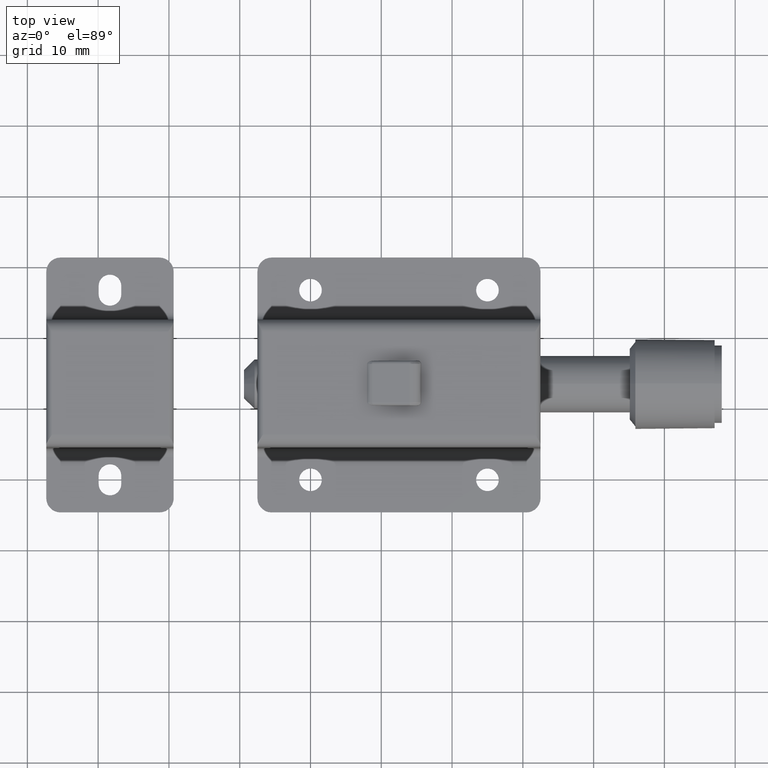
[diagram: clean part render]
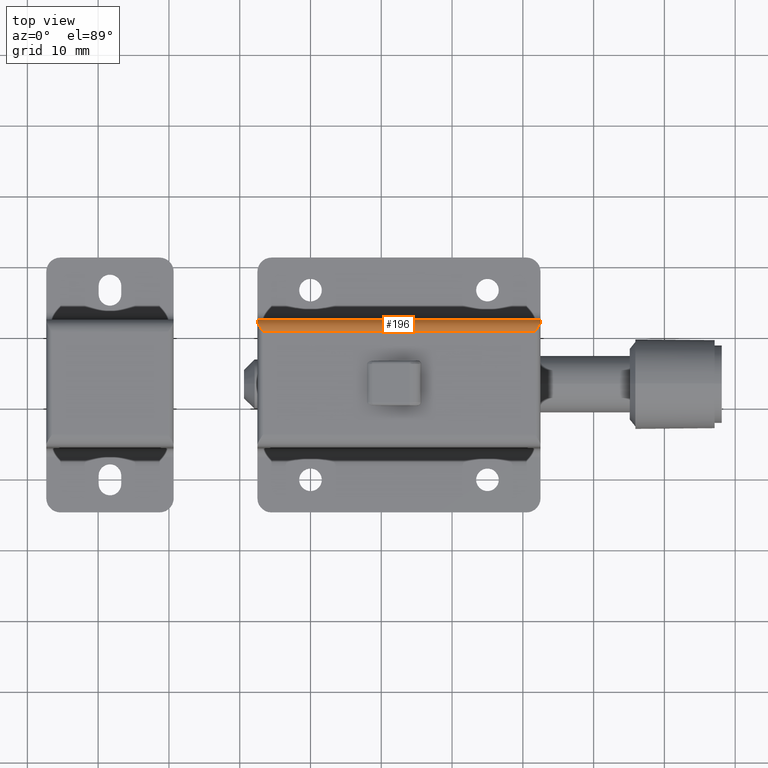
[diagram: same view with one face highlighted and labeled with its STEP entity id]
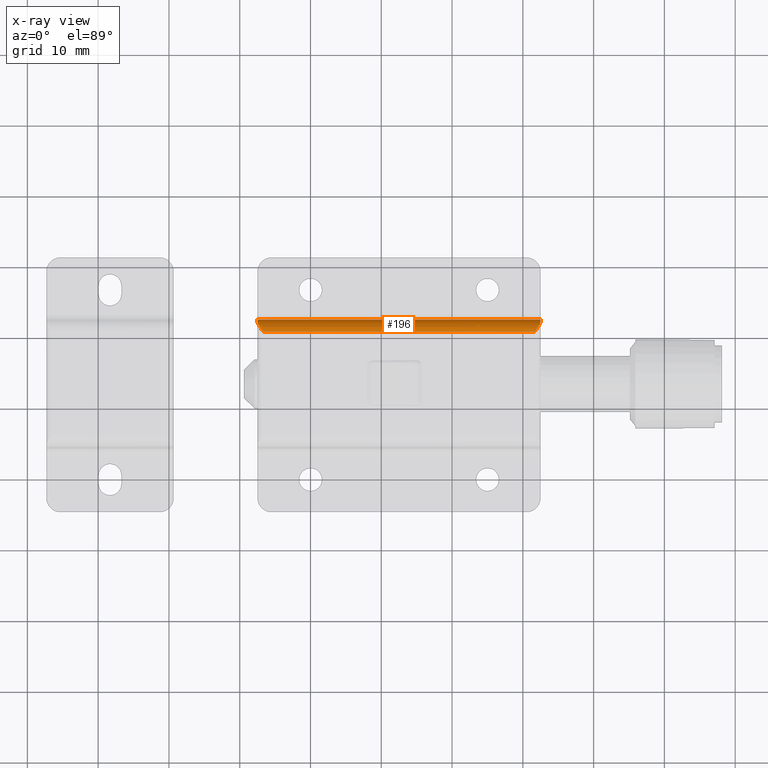
[diagram: x-ray of the same camera — body ghosted, the highlighted face saturated]
A machine part, top view. The second image highlights one B-rep face of the part: STEP entity #196.
The next image is the same camera in x-ray: the body ghosted, the highlighted face saturated — about 0% of this face is hidden behind the body in this view.
In plain terms, the highlighted cylindrical surface (edge-blend (fillet) strip) has radius 1.75 mm, axis along (-1, -0, -0).
Its self-contained STEP definition (entity closure, byte-faithful):
#196=ADVANCED_FACE('',(#762),#761,.T.);
#761=CYLINDRICAL_SURFACE('',#1902,1.75000000000E+00);
#762=FACE_OUTER_BOUND('',#1903,.T.);
#1899=CARTESIAN_POINT('',(-9.67500000000E+02,2.06500000000E+01,1.30500000000E+01));
#1900=DIRECTION('',(-1.00000000000E+00,-0.00000000000E+00,-0.00000000000E+00));
#1901=DIRECTION('',(-0.00000000000E+00,-0.00000000000E+00,1.00000000000E+00));
#1902=AXIS2_PLACEMENT_3D('',#1899,#1900,#1901);
#1903=EDGE_LOOP('',(#2623,#2624,#2625,#2626,#2627,#2628));
#2623=ORIENTED_EDGE('',*,*,#3088,.F.);
#2624=ORIENTED_EDGE('',*,*,#3183,.T.);
#2625=ORIENTED_EDGE('',*,*,#3105,.T.);
#2626=ORIENTED_EDGE('',*,*,#3035,.T.);
#2627=ORIENTED_EDGE('',*,*,#3079,.T.);
#2628=ORIENTED_EDGE('',*,*,#3185,.F.);
#3035=EDGE_CURVE('',#3381,#3374,#3382,.T.);
#3079=EDGE_CURVE('',#3374,#3682,#3683,.T.);
#3088=EDGE_CURVE('',#3736,#3743,#3744,.T.);
#3105=EDGE_CURVE('',#3857,#3381,#3858,.T.);
#3183=EDGE_CURVE('',#3736,#3857,#4374,.T.);
#3185=EDGE_CURVE('',#3743,#3682,#4386,.T.);
#3374=VERTEX_POINT('',#5594);
#3381=VERTEX_POINT('',#5598);
#3382=(BOUNDED_CURVE() B_SPLINE_CURVE(3,(#5599,#5600,#5601,#5602,#5603,#5604,#5605,#5606,#5607,#5608),.UNSPECIFIED.,.F.,.F.) B_SPLINE_CURVE_WITH_KNOTS((4,2,2,2,4),(-1.93834991033E-03,-1.45376243275E-03,-9.69174955164E-04,-4.84587477582E-04,-6.25463444139E-18),.UNSPECIFIED.) CURVE() GEOMETRIC_REPRESENTATION_ITEM() RATIONAL_B_SPLINE_CURVE((1.00000000000E+00,1.00000000000E+00,1.00000000000E+00,1.00000000000E+00,1.00000000000E+00,1.00000000000E+00,1.00000000000E+00,1.00000000000E+00,1.00000000000E+00,1.00000000000E+00)) REPRESENTATION_ITEM('') );
#3682=VERTEX_POINT('',#5803);
#3683=CIRCLE('',#5807,1.75000000000E+00);
#3736=VERTEX_POINT('',#5837);
#3743=VERTEX_POINT('',#5841);
#3744=CIRCLE('',#5845,1.75000000000E+00);
#3857=VERTEX_POINT('',#5912);
#3858=LINE('',#5913,#5914);
#4374=(BOUNDED_CURVE() B_SPLINE_CURVE(3,(#6231,#6232,#6233,#6234,#6235,#6236,#6237,#6238,#6239,#6240),.UNSPECIFIED.,.F.,.F.) B_SPLINE_CURVE_WITH_KNOTS((4,2,2,2,4),(6.31448876631E-18,4.84587477582E-04,9.69174955164E-04,1.45376243275E-03,1.93834991033E-03),.UNSPECIFIED.) CURVE() GEOMETRIC_REPRESENTATION_ITEM() RATIONAL_B_SPLINE_CURVE((1.00000000000E+00,1.00000000000E+00,1.00000000000E+00,1.00000000000E+00,1.00000000000E+00,1.00000000000E+00,1.00000000000E+00,1.00000000000E+00,1.00000000000E+00,1.00000000000E+00)) REPRESENTATION_ITEM('') );
#4386=LINE('',#6244,#6245);
#5594=CARTESIAN_POINT('',(3.25000000000E+01,2.21196938457E+01,1.40000000000E+01));
#5598=CARTESIAN_POINT('',(3.17000000000E+01,2.06500000000E+01,1.48000000000E+01));
#5599=CARTESIAN_POINT('',(3.17000000000E+01,2.06500000000E+01,1.48000000000E+01));
#5600=CARTESIAN_POINT('',(3.17904744032E+01,2.07838137581E+01,1.48000000000E+01));
#5601=CARTESIAN_POINT('',(3.18827159471E+01,2.09202191080E+01,1.47843426260E+01));
#5602=CARTESIAN_POINT('',(3.20570950138E+01,2.11846903022E+01,1.47218459832E+01));
#5603=CARTESIAN_POINT('',(3.21405224396E+01,2.13144236780E+01,1.46753220969E+01));
#5604=CARTESIAN_POINT('',(3.22940041654E+01,2.15705482436E+01,1.45452329831E+01));
#5605=CARTESIAN_POINT('',(3.23621808729E+01,2.16935294878E+01,1.44632669076E+01));
#5606=CARTESIAN_POINT('',(3.24655152738E+01,2.19245871212E+01,1.42590098488E+01));
#5607=CARTESIAN_POINT('',(3.25000000000E+01,2.20303522408E+01,1.41382155862E+01));
#5608=CARTESIAN_POINT('',(3.25000000000E+01,2.21196938457E+01,1.40000000000E+01));
#5803=CARTESIAN_POINT('',(3.25000000000E+01,2.24000000000E+01,1.30500000000E+01));
#5804=CARTESIAN_POINT('',(3.25000000000E+01,2.06500000000E+01,1.30500000000E+01));
#5805=DIRECTION('',(-1.00000000000E+00,-0.00000000000E+00,0.00000000000E+00));
#5806=DIRECTION('',(0.00000000000E+00,-0.00000000000E+00,1.00000000000E+00));
#5807=AXIS2_PLACEMENT_3D('',#5804,#5805,#5806);
#5837=CARTESIAN_POINT('',(-7.50000000000E+00,2.21196938457E+01,1.40000000000E+01));
#5841=CARTESIAN_POINT('',(-7.50000000000E+00,2.24000000000E+01,1.30500000000E+01));
#5842=CARTESIAN_POINT('',(-7.50000000000E+00,2.06500000000E+01,1.30500000000E+01));
#5843=DIRECTION('',(-1.00000000000E+00,-0.00000000000E+00,0.00000000000E+00));
#5844=DIRECTION('',(0.00000000000E+00,-0.00000000000E+00,1.00000000000E+00));
#5845=AXIS2_PLACEMENT_3D('',#5842,#5843,#5844);
#5912=CARTESIAN_POINT('',(-6.70000000000E+00,2.06500000000E+01,1.48000000000E+01));
#5913=CARTESIAN_POINT('',(-6.70000000000E+00,2.06500000000E+01,1.48000000000E+01));
#5914=VECTOR('',#5915,3.84000000000E+01);
#5915=DIRECTION('',(1.00000000000E+00,0.00000000000E+00,0.00000000000E+00));
#6231=CARTESIAN_POINT('',(-7.50000000000E+00,2.21196938457E+01,1.40000000000E+01));
#6232=CARTESIAN_POINT('',(-7.50000000000E+00,2.20303522408E+01,1.41382155862E+01));
#6233=CARTESIAN_POINT('',(-7.46551527377E+00,2.19245871212E+01,1.42590098488E+01));
#6234=CARTESIAN_POINT('',(-7.36218087289E+00,2.16935294878E+01,1.44632669076E+01));
#6235=CARTESIAN_POINT('',(-7.29400416540E+00,2.15705482436E+01,1.45452329831E+01));
#6236=CARTESIAN_POINT('',(-7.14052243962E+00,2.13144236780E+01,1.46753220969E+01));
#6237=CARTESIAN_POINT('',(-7.05709501384E+00,2.11846903022E+01,1.47218459832E+01));
#6238=CARTESIAN_POINT('',(-6.88271594715E+00,2.09202191080E+01,1.47843426260E+01));
#6239=CARTESIAN_POINT('',(-6.79047440319E+00,2.07838137581E+01,1.48000000000E+01));
#6240=CARTESIAN_POINT('',(-6.70000000000E+00,2.06500000000E+01,1.48000000000E+01));
#6244=CARTESIAN_POINT('',(-7.50000000000E+00,2.24000000000E+01,1.30500000000E+01));
#6245=VECTOR('',#6246,4.00000000000E+01);
#6246=DIRECTION('',(1.00000000000E+00,0.00000000000E+00,0.00000000000E+00));